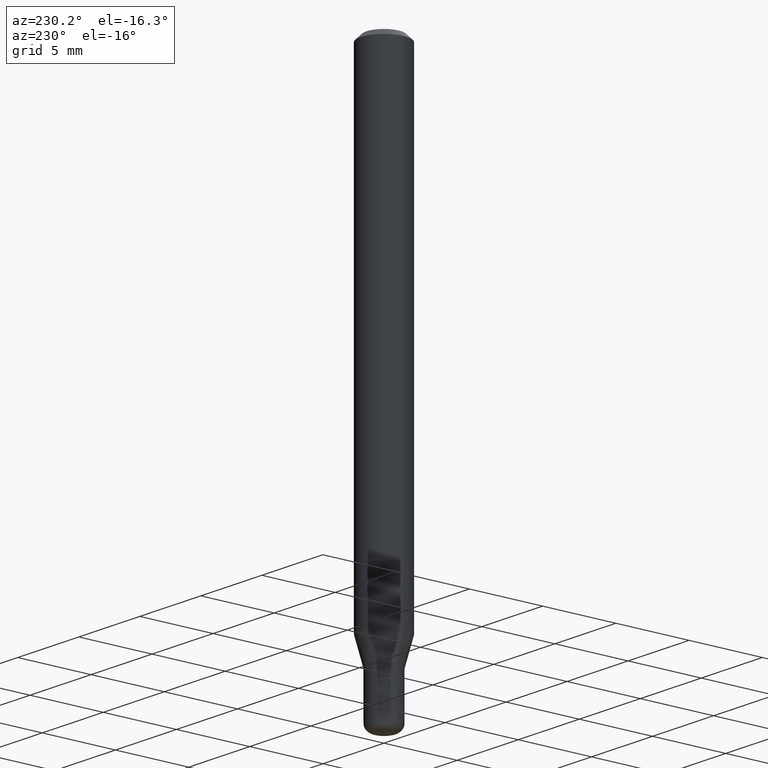
[diagram: clean part render]
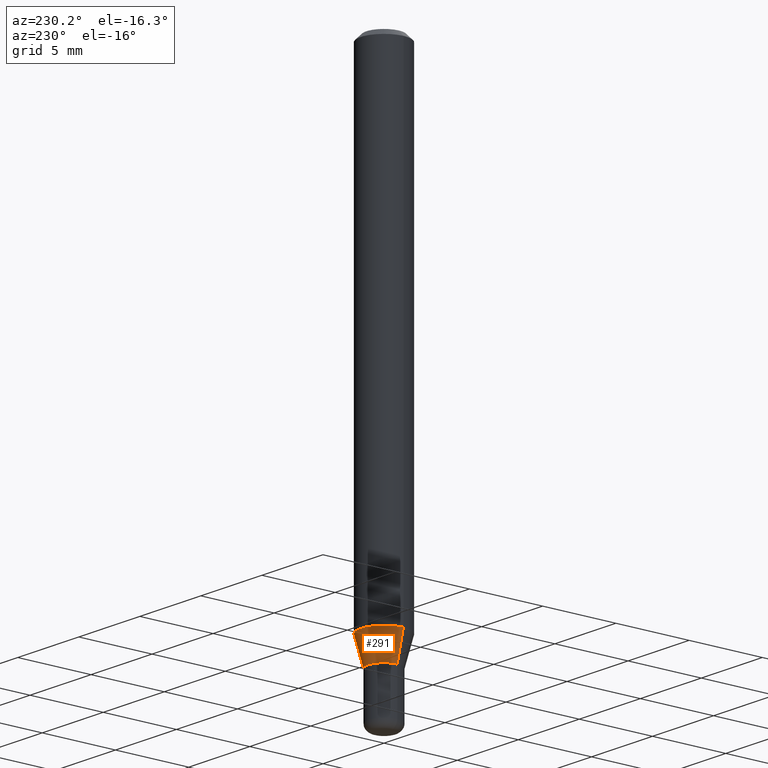
[diagram: same view with one face highlighted and labeled with its STEP entity id]
A machine part, auxiliary view. The second image highlights one B-rep face of the part: STEP entity #291.
In plain terms, the highlighted conical surface has half-angle 15 deg.
Its self-contained STEP definition (entity closure, byte-faithful):
#2 = VECTOR ( 'NONE', #198, 39.37007874015748143 ) ;
#4 = DIRECTION ( 'NONE',  ( -2.445468806185136597E-29, 3.491481338843145583E-15, 1.000000000000000000 ) ) ;
#15 = DIRECTION ( 'NONE',  ( -0.2588190451025210725, 5.211531920934548675E-15, 0.9659258262890682012 ) ) ;
#36 = ORIENTED_EDGE ( 'NONE', *, *, #173, .F. ) ;
#64 = CARTESIAN_POINT ( 'NONE',  ( -0.06250000000000000000, -4.050700658649478029E-15, -1.287358983848622795 ) ) ;
#72 = VECTOR ( 'NONE', #15, 39.37007874015748143 ) ;
#81 = CARTESIAN_POINT ( 'NONE',  ( 0.06250000000000000000, -4.931225035854932314E-15, -1.287358983848622795 ) ) ;
#95 = CARTESIAN_POINT ( 'NONE',  ( 3.148196237364002379E-29, -4.494789868499541434E-15, -1.287358983848622795 ) ) ;
#101 = ORIENTED_EDGE ( 'NONE', *, *, #376, .F. ) ;
#138 = LINE ( 'NONE', #187, #72 ) ;
#155 = FACE_OUTER_BOUND ( 'NONE', #437, .T. ) ;
#162 = LINE ( 'NONE', #201, #2 ) ;
#170 = DIRECTION ( 'NONE',  ( 1.000000000000000000, -6.982962677686269866E-15, 0.000000000000000000 ) ) ;
#171 = ORIENTED_EDGE ( 'NONE', *, *, #208, .T. ) ;
#173 = EDGE_CURVE ( 'NONE', #470, #334, #309, .T. ) ;
#178 = CIRCLE ( 'NONE', #465, 0.04250000000000003081 ) ;
#187 = CARTESIAN_POINT ( 'NONE',  ( -0.04250000000000003081, -4.453416920806321806E-15, -1.362000000000000099 ) ) ;
#197 = ORIENTED_EDGE ( 'NONE', *, *, #486, .T. ) ;
#198 = DIRECTION ( 'NONE',  ( 0.2588190451025210725, 1.565188264969624137E-15, 0.9659258262890682012 ) ) ;
#201 = CARTESIAN_POINT ( 'NONE',  ( 0.04250000000000003081, -5.052173497306030910E-15, -1.362000000000000099 ) ) ;
#208 = EDGE_CURVE ( 'NONE', #407, #334, #138, .T. ) ;
#235 = CARTESIAN_POINT ( 'NONE',  ( -0.04250000000000003081, -4.252058789727899918E-15, -1.362000000000000099 ) ) ;
#271 = DIRECTION ( 'NONE',  ( 1.000000000000000000, -6.982962677686262766E-15, 0.000000000000000000 ) ) ;
#291 = ADVANCED_FACE ( 'NONE', ( #155 ), #411, .T. ) ;
#309 = CIRCLE ( 'NONE', #464, 0.06250000000000000000 ) ;
#325 = CARTESIAN_POINT ( 'NONE',  ( 3.330728514024156148E-29, -4.755397583504364259E-15, -1.362000000000000099 ) ) ;
#334 = VERTEX_POINT ( 'NONE', #64 ) ;
#376 = EDGE_CURVE ( 'NONE', #479, #470, #162, .T. ) ;
#378 = CARTESIAN_POINT ( 'NONE',  ( 3.330728514024156148E-29, -4.755397583504364259E-15, -1.362000000000000099 ) ) ;
#386 = AXIS2_PLACEMENT_3D ( 'NONE', #325, #477, #513 ) ;
#389 = DIRECTION ( 'NONE',  ( -2.445468806185136597E-29, 3.491481338843145583E-15, 1.000000000000000000 ) ) ;
#407 = VERTEX_POINT ( 'NONE', #235 ) ;
#411 = CONICAL_SURFACE ( 'NONE', #386, 0.04250000000000003081, 0.2617993877991497409 ) ;
#437 = EDGE_LOOP ( 'NONE', ( #197, #171, #36, #101 ) ) ;
#457 = CARTESIAN_POINT ( 'NONE',  ( 0.04250000000000003081, -5.052173497306030910E-15, -1.362000000000000099 ) ) ;
#464 = AXIS2_PLACEMENT_3D ( 'NONE', #95, #389, #271 ) ;
#465 = AXIS2_PLACEMENT_3D ( 'NONE', #378, #4, #170 ) ;
#470 = VERTEX_POINT ( 'NONE', #81 ) ;
#477 = DIRECTION ( 'NONE',  ( -2.445468806185136597E-29, 3.491481338843145583E-15, 1.000000000000000000 ) ) ;
#479 = VERTEX_POINT ( 'NONE', #457 ) ;
#486 = EDGE_CURVE ( 'NONE', #479, #407, #178, .T. ) ;
#513 = DIRECTION ( 'NONE',  ( 1.000000000000000000, -6.982962677686269866E-15, 0.000000000000000000 ) ) ;